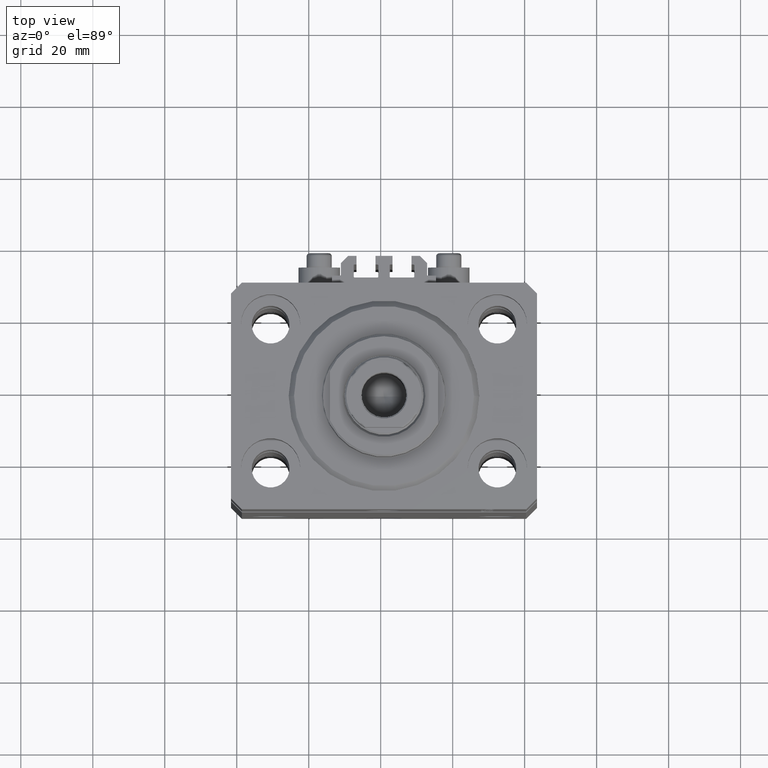
[diagram: clean part render]
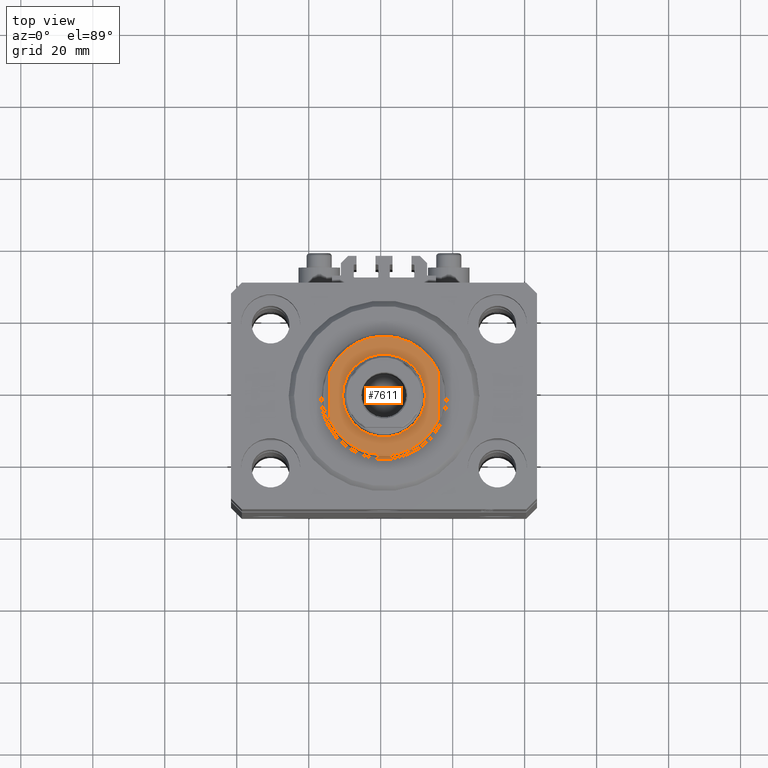
[diagram: same view with one face highlighted and labeled with its STEP entity id]
A machine part, top view. The second image highlights one B-rep face of the part: STEP entity #7611.
In plain terms, the highlighted planar face has unit normal (0, 0, 1).
Its self-contained STEP definition (entity closure, byte-faithful):
#290 = AXIS2_PLACEMENT_3D ( 'NONE', #8517, #8754, #30648 ) ;
#1044 = ORIENTED_EDGE ( 'NONE', *, *, #23862, .T. ) ;
#1288 = ORIENTED_EDGE ( 'NONE', *, *, #43415, .T. ) ;
#2833 = VERTEX_POINT ( 'NONE', #32608 ) ;
#5007 = DIRECTION ( 'NONE',  ( -1.000000000000000000, 0.000000000000000000, 0.000000000000000000 ) ) ;
#5105 = VERTEX_POINT ( 'NONE', #18937 ) ;
#5767 = EDGE_LOOP ( 'NONE', ( #1044, #1288, #27810, #40619 ) ) ;
#6626 = AXIS2_PLACEMENT_3D ( 'NONE', #21007, #32216, #47021 ) ;
#7153 = EDGE_CURVE ( 'NONE', #39101, #43893, #22383, .T. ) ;
#7611 = ADVANCED_FACE ( 'NONE', ( #9096, #23942 ), #24177, .T. ) ;
#8517 = CARTESIAN_POINT ( 'NONE',  ( 0.000000000000000000, 0.000000000000000000, -7.000000000000000000 ) ) ;
#8754 = DIRECTION ( 'NONE',  ( -0.000000000000000000, -0.000000000000000000, 1.000000000000000000 ) ) ;
#9096 = FACE_BOUND ( 'NONE', #23827, .T. ) ;
#9120 = AXIS2_PLACEMENT_3D ( 'NONE', #14066, #10171, #13826 ) ;
#9686 = CARTESIAN_POINT ( 'NONE',  ( 15.00000000000000000, -42.42640687119285303, -7.000000000000000000 ) ) ;
#10171 = DIRECTION ( 'NONE',  ( 0.000000000000000000, 0.000000000000000000, -1.000000000000000000 ) ) ;
#10198 = CARTESIAN_POINT ( 'NONE',  ( -11.50000000000001776, 0.000000000000000000, -7.000000000000000000 ) ) ;
#11765 = CIRCLE ( 'NONE', #17977, 11.50000000000001776 ) ;
#12114 = EDGE_CURVE ( 'NONE', #14440, #26123, #11765, .T. ) ;
#13340 = LINE ( 'NONE', #9686, #25240 ) ;
#13826 = DIRECTION ( 'NONE',  ( -1.000000000000000000, 0.000000000000000000, 0.000000000000000000 ) ) ;
#13933 = VECTOR ( 'NONE', #15066, 1000.000000000000000 ) ;
#14066 = CARTESIAN_POINT ( 'NONE',  ( 0.000000000000000000, 0.000000000000000000, -7.000000000000000000 ) ) ;
#14440 = VERTEX_POINT ( 'NONE', #15245 ) ;
#14669 = CARTESIAN_POINT ( 'NONE',  ( -14.99999999999999645, -6.873863542433817031, -7.000000000000000000 ) ) ;
#15066 = DIRECTION ( 'NONE',  ( -0.000000000000000000, -1.000000000000000000, -0.000000000000000000 ) ) ;
#15245 = CARTESIAN_POINT ( 'NONE',  ( 11.50000000000001776, 1.408343819019458543E-15, -7.000000000000000000 ) ) ;
#17977 = AXIS2_PLACEMENT_3D ( 'NONE', #33982, #41754, #5007 ) ;
#18937 = CARTESIAN_POINT ( 'NONE',  ( 14.99999999999999645, 6.873863542433817031, -7.000000000000000000 ) ) ;
#19448 = ORIENTED_EDGE ( 'NONE', *, *, #20912, .T. ) ;
#20277 = DIRECTION ( 'NONE',  ( 0.000000000000000000, 0.000000000000000000, -1.000000000000000000 ) ) ;
#20876 = DIRECTION ( 'NONE',  ( 0.000000000000000000, -1.000000000000000000, -0.000000000000000000 ) ) ;
#20912 = EDGE_CURVE ( 'NONE', #26123, #14440, #35274, .T. ) ;
#21007 = CARTESIAN_POINT ( 'NONE',  ( 0.000000000000000000, 0.000000000000000000, -7.000000000000000000 ) ) ;
#22383 = LINE ( 'NONE', #37229, #13933 ) ;
#22876 = ORIENTED_EDGE ( 'NONE', *, *, #12114, .T. ) ;
#23827 = EDGE_LOOP ( 'NONE', ( #19448, #22876 ) ) ;
#23862 = EDGE_CURVE ( 'NONE', #39101, #5105, #47033, .T. ) ;
#23942 = FACE_OUTER_BOUND ( 'NONE', #5767, .T. ) ;
#24177 = PLANE ( 'NONE',  #48112 ) ;
#25240 = VECTOR ( 'NONE', #20876, 1000.000000000000000 ) ;
#26123 = VERTEX_POINT ( 'NONE', #10198 ) ;
#27810 = ORIENTED_EDGE ( 'NONE', *, *, #29116, .T. ) ;
#27899 = CARTESIAN_POINT ( 'NONE',  ( -14.99999999999999645, 6.873863542433817031, -7.000000000000000000 ) ) ;
#29116 = EDGE_CURVE ( 'NONE', #2833, #43893, #47970, .T. ) ;
#30648 = DIRECTION ( 'NONE',  ( -1.000000000000000000, 0.000000000000000000, 0.000000000000000000 ) ) ;
#32216 = DIRECTION ( 'NONE',  ( 0.000000000000000000, 0.000000000000000000, -1.000000000000000000 ) ) ;
#32608 = CARTESIAN_POINT ( 'NONE',  ( 14.99999999999999645, -6.873863542433817031, -7.000000000000000000 ) ) ;
#33982 = CARTESIAN_POINT ( 'NONE',  ( 0.000000000000000000, 0.000000000000000000, -7.000000000000000000 ) ) ;
#35124 = DIRECTION ( 'NONE',  ( -1.000000000000000000, 0.000000000000000000, -0.000000000000000000 ) ) ;
#35274 = CIRCLE ( 'NONE', #290, 11.50000000000001776 ) ;
#37229 = CARTESIAN_POINT ( 'NONE',  ( -15.00000000000000000, -42.42640687119285303, -7.000000000000000000 ) ) ;
#38781 = CARTESIAN_POINT ( 'NONE',  ( 0.000000000000000000, 0.000000000000000000, -7.000000000000000000 ) ) ;
#39101 = VERTEX_POINT ( 'NONE', #27899 ) ;
#40619 = ORIENTED_EDGE ( 'NONE', *, *, #7153, .F. ) ;
#41754 = DIRECTION ( 'NONE',  ( -0.000000000000000000, -0.000000000000000000, 1.000000000000000000 ) ) ;
#43415 = EDGE_CURVE ( 'NONE', #5105, #2833, #13340, .T. ) ;
#43893 = VERTEX_POINT ( 'NONE', #14669 ) ;
#47021 = DIRECTION ( 'NONE',  ( -1.000000000000000000, 0.000000000000000000, 0.000000000000000000 ) ) ;
#47033 = CIRCLE ( 'NONE', #6626, 16.50000000000002132 ) ;
#47970 = CIRCLE ( 'NONE', #9120, 16.50000000000002132 ) ;
#48112 = AXIS2_PLACEMENT_3D ( 'NONE', #38781, #20277, #35124 ) ;